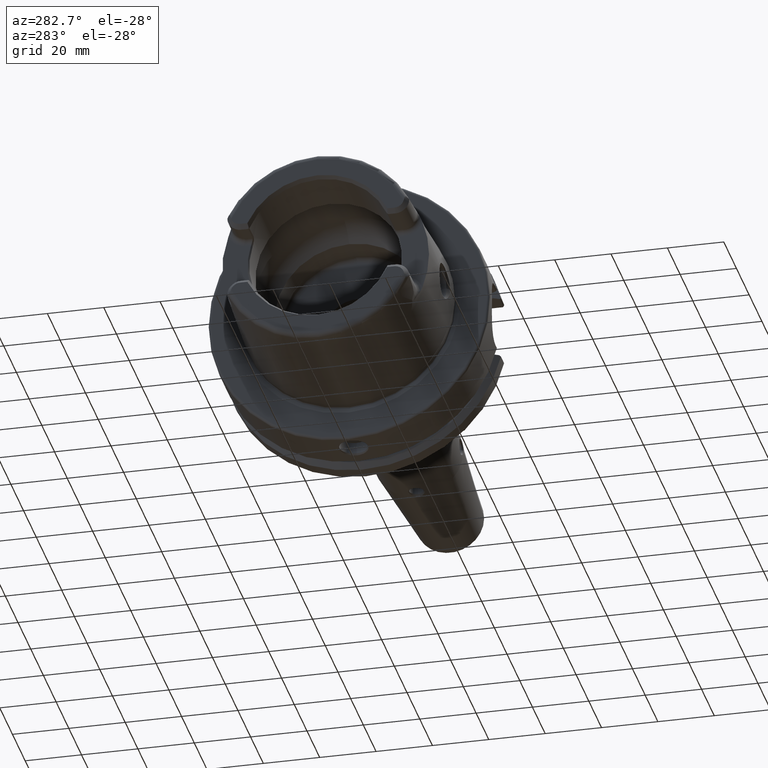
[diagram: clean part render]
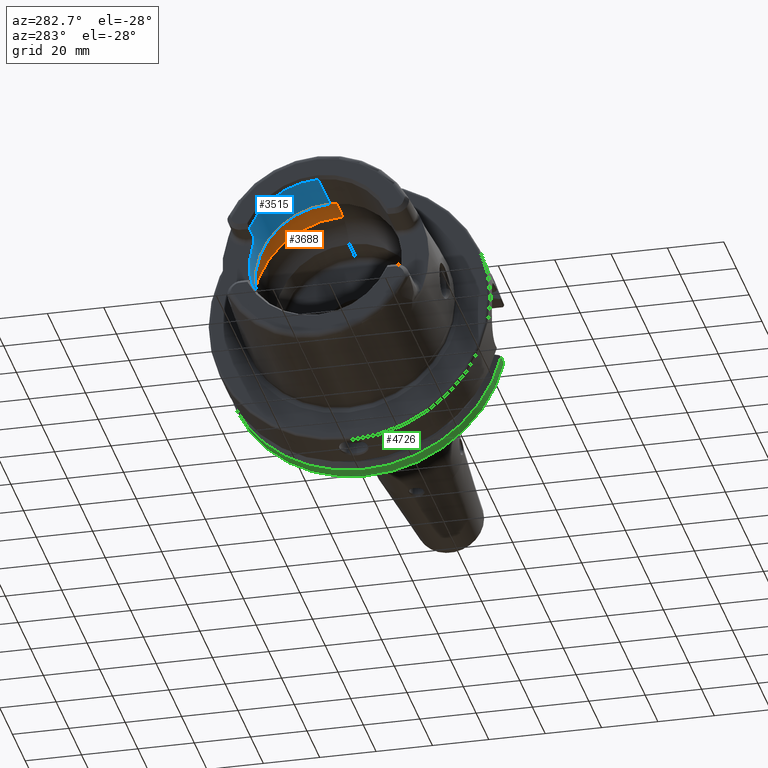
[diagram: same view with three faces highlighted in distinct colors, each labeled with its STEP entity id]
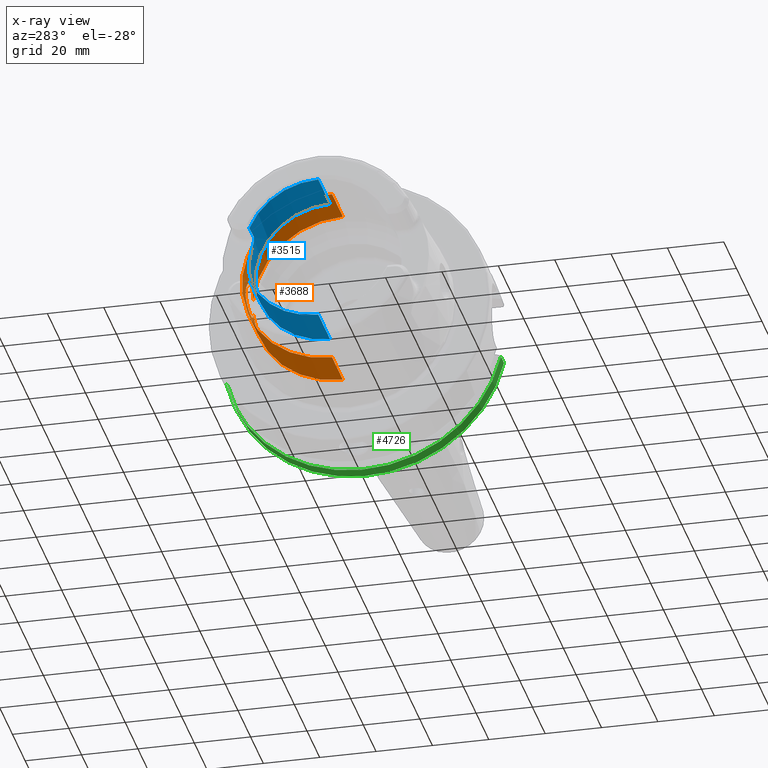
[diagram: x-ray of the same camera — body ghosted, the three highlighted faces saturated]
A machine part, auxiliary view with three faces highlighted in distinct colors.
The next image is the same camera in x-ray (body ghosted, the three faces saturated) — at least one of them is partly hidden behind the body in this view.
Their STEP definitions:

[orange] entity #3688 — the highlighted cylindrical surface (partial cylindrical patch) has radius 31.9778 mm, axis along (1, 0, 0).
#427=CARTESIAN_POINT('',(-9.7468E0,3.184612797556E1,-2.898946318923E0));
#428=CARTESIAN_POINT('',(-9.944005412070E0,3.181359782082E1,-3.256303564183E0));
#429=CARTESIAN_POINT('',(-1.040120900734E1,3.174159300596E1,-3.916297432444E0));
#430=CARTESIAN_POINT('',(-1.128383632194E1,3.162406528815E1,-4.763660379291E0));
#431=CARTESIAN_POINT('',(-1.232230375292E1,3.151751839140E1,-5.415146251802E0));
#432=CARTESIAN_POINT('',(-1.346407685513E1,3.143989965097E1,-5.843179728264E0));
#433=CARTESIAN_POINT('',(-1.468413550622E1,3.140346134515E1,-6.033257760163E0));
#434=CARTESIAN_POINT('',(-1.590286337370E1,3.141500045215E1,-5.973799251079E0));
#435=CARTESIAN_POINT('',(-1.709958222396E1,3.147295008569E1,-5.664973385295E0));
#436=CARTESIAN_POINT('',(-1.819223644760E1,3.156605857287E1,-5.128923203682E0));
#437=CARTESIAN_POINT('',(-1.916478424237E1,3.168070870612E1,-4.376379215682E0));
#438=CARTESIAN_POINT('',(-1.995642944012E1,3.179608319799E1,-3.453352431193E0));
#439=CARTESIAN_POINT('',(-2.055185605700E1,3.189559952721E1,-2.383229318045E0));
#440=CARTESIAN_POINT('',(-2.091773124914E1,3.196221615525E1,-1.212629527282E0));
#441=CARTESIAN_POINT('',(-2.1E1,3.1977801E1,-4.101582191210E-1));
#442=CARTESIAN_POINT('',(-2.1E1,3.1977801E1,0.E0));
#444=CARTESIAN_POINT('',(-9.7468E0,0.E0,0.E0));
#445=DIRECTION('',(1.E0,0.E0,0.E0));
#446=DIRECTION('',(0.E0,0.E0,-1.E0));
#447=AXIS2_PLACEMENT_3D('',#444,#445,#446);
#449=CARTESIAN_POINT('',(-9.7468E0,0.E0,0.E0));
#450=DIRECTION('',(1.E0,0.E0,0.E0));
#451=DIRECTION('',(0.E0,9.958823615031E-1,9.065496151294E-2));
#452=AXIS2_PLACEMENT_3D('',#449,#450,#451);
#454=CARTESIAN_POINT('',(-2.1E1,3.1977801E1,0.E0));
#455=CARTESIAN_POINT('',(-2.1E1,3.1977801E1,4.106997477683E-1));
#456=CARTESIAN_POINT('',(-2.091749471661E1,3.196217129480E1,1.214029966031E0));
#457=CARTESIAN_POINT('',(-2.055116984056E1,3.189547806763E1,2.384883505607E0));
#458=CARTESIAN_POINT('',(-1.995512820959E1,3.179587350407E1,3.455309060389E0));
#459=CARTESIAN_POINT('',(-1.916278264299E1,3.168044678313E1,4.378227659287E0));
#460=CARTESIAN_POINT('',(-1.819087647608E1,3.156592403505E1,5.129712845397E0));
#461=CARTESIAN_POINT('',(-1.709844581408E1,3.147288841800E1,5.665307686584E0));
#462=CARTESIAN_POINT('',(-1.590338113122E1,3.141502534529E1,5.973665622476E0));
#463=CARTESIAN_POINT('',(-1.468440379305E1,3.140345786656E1,6.033275618571E0));
#464=CARTESIAN_POINT('',(-1.346474793553E1,3.143986592390E1,5.843361181337E0));
#465=CARTESIAN_POINT('',(-1.232220739456E1,3.151751847994E1,5.415151951562E0));
#466=CARTESIAN_POINT('',(-1.128353552125E1,3.162409994003E1,4.763448630545E0));
#467=CARTESIAN_POINT('',(-1.040077785180E1,3.174165626215E1,3.915788684093E0));
#468=CARTESIAN_POINT('',(-9.943868956182E0,3.181362033E1,3.256056291556E0));
#469=CARTESIAN_POINT('',(-9.7468E0,3.184612797556E1,2.898946318923E0));
#524=DIRECTION('',(-1.E0,0.E0,0.E0));
#525=VECTOR('',#524,1.709396579106E1);
#526=CARTESIAN_POINT('',(-9.7468E0,0.E0,3.1977801E1));
#527=LINE('',#526,#525);
#528=DIRECTION('',(-1.E0,0.E0,0.E0));
#529=VECTOR('',#528,1.709396579106E1);
#530=CARTESIAN_POINT('',(-9.7468E0,0.E0,-3.1977801E1));
#531=LINE('',#530,#529);
#550=CARTESIAN_POINT('',(-2.684076579106E1,0.E0,0.E0));
#551=DIRECTION('',(1.E0,0.E0,0.E0));
#552=DIRECTION('',(0.E0,0.E0,-1.E0));
#553=AXIS2_PLACEMENT_3D('',#550,#551,#552);
#2805=CARTESIAN_POINT('',(-2.684076579106E1,0.E0,-3.1977801E1));
#2806=CARTESIAN_POINT('',(-2.684076579106E1,0.E0,3.1977801E1));
#2807=VERTEX_POINT('',#2805);
#2808=VERTEX_POINT('',#2806);
#2817=CARTESIAN_POINT('',(-9.7468E0,0.E0,-3.1977801E1));
#2818=VERTEX_POINT('',#2817);
#2819=CARTESIAN_POINT('',(-9.7468E0,0.E0,3.1977801E1));
#2820=VERTEX_POINT('',#2819);
#3098=VERTEX_POINT('',#427);
#3099=VERTEX_POINT('',#442);
#3100=VERTEX_POINT('',#469);
#3669=CARTESIAN_POINT('',(0.E0,0.E0,0.E0));
#3670=DIRECTION('',(1.E0,0.E0,0.E0));
#3671=DIRECTION('',(0.E0,0.E0,1.E0));
#3672=AXIS2_PLACEMENT_3D('',#3669,#3670,#3671);
#3673=CYLINDRICAL_SURFACE('',#3672,3.1977801E1);
#3674=ORIENTED_EDGE('',*,*,#3588,.F.);
#3676=ORIENTED_EDGE('',*,*,#3675,.F.);
#3678=ORIENTED_EDGE('',*,*,#3677,.T.);
#3680=ORIENTED_EDGE('',*,*,#3679,.T.);
#3682=ORIENTED_EDGE('',*,*,#3681,.F.);
#3684=ORIENTED_EDGE('',*,*,#3683,.F.);
#3685=ORIENTED_EDGE('',*,*,#3646,.F.);
#3686=EDGE_LOOP('',(#3674,#3676,#3678,#3680,#3682,#3684,#3685));
#3687=FACE_OUTER_BOUND('',#3686,.F.);
#3688=ADVANCED_FACE('',(#3687),#3673,.F.);
#443=B_SPLINE_CURVE_WITH_KNOTS('',3,(#427,#428,#429,#430,#431,#432,#433,#434,
#435,#436,#437,#438,#439,#440,#441,#442),.UNSPECIFIED.,.F.,.F.,(4,1,1,1,1,1,1,1,
1,1,1,1,1,4),(0.E0,7.692307692308E-2,1.538461538462E-1,2.307692307692E-1,
3.076923076923E-1,3.846153846154E-1,4.615384615385E-1,5.384615384615E-1,
6.153846153846E-1,6.923076923077E-1,7.692307692308E-1,8.461538461538E-1,
9.230769230769E-1,1.E0),.UNSPECIFIED.);
#448=CIRCLE('',#447,3.1977801E1);
#453=CIRCLE('',#452,3.1977801E1);
#470=B_SPLINE_CURVE_WITH_KNOTS('',3,(#454,#455,#456,#457,#458,#459,#460,#461,
#462,#463,#464,#465,#466,#467,#468,#469),.UNSPECIFIED.,.F.,.F.,(4,1,1,1,1,1,1,1,
1,1,1,1,1,4),(0.E0,7.692307692308E-2,1.538461538462E-1,2.307692307692E-1,
3.076923076923E-1,3.846153846154E-1,4.615384615385E-1,5.384615384615E-1,
6.153846153846E-1,6.923076923077E-1,7.692307692308E-1,8.461538461538E-1,
9.230769230769E-1,1.E0),.UNSPECIFIED.);
#554=CIRCLE('',#553,3.1977801E1);
#3588=EDGE_CURVE('',#3098,#3099,#443,.T.);
#3646=EDGE_CURVE('',#3099,#3100,#470,.T.);
#3675=EDGE_CURVE('',#2818,#3098,#448,.T.);
#3677=EDGE_CURVE('',#2818,#2807,#531,.T.);
#3679=EDGE_CURVE('',#2807,#2808,#554,.T.);
#3681=EDGE_CURVE('',#2820,#2808,#527,.T.);
#3683=EDGE_CURVE('',#3100,#2820,#453,.T.);

[blue] entity #3515 — the highlighted cylindrical surface (partial cylindrical patch) has radius 26.5 mm, axis along (1, 0, 0).
#237=CARTESIAN_POINT('',(-4.85E1,0.E0,0.E0));
#238=DIRECTION('',(1.E0,0.E0,0.E0));
#239=DIRECTION('',(0.E0,0.E0,-1.E0));
#240=AXIS2_PLACEMENT_3D('',#237,#238,#239);
#242=DIRECTION('',(-1.E0,-2.003659559567E-10,-3.466355579106E-10));
#243=VECTOR('',#242,6.499999678846E0);
#244=CARTESIAN_POINT('',(-4.200000032114E1,2.440989828297E1,-1.031537036812E1));
#245=LINE('',#244,#243);
#246=CARTESIAN_POINT('',(-3.949999999140E1,2.530699866065E1,-7.861667688007E0));
#247=CARTESIAN_POINT('',(-3.949795731454E1,2.523750189404E1,-8.085380378471E0));
#248=CARTESIAN_POINT('',(-3.956038447328E1,2.509761390786E1,-8.515347360772E0));
#249=CARTESIAN_POINT('',(-3.982663656548E1,2.487835176005E1,-9.134757987534E0));
#250=CARTESIAN_POINT('',(-4.024625699068E1,2.468206325073E1,-9.650053877008E0));
#251=CARTESIAN_POINT('',(-4.077947187094E1,2.452693438204E1,-1.003573344464E1));
#252=CARTESIAN_POINT('',(-4.138865352483E1,2.443047707860E1,-1.026689735567E1));
#253=CARTESIAN_POINT('',(-4.179354293840E1,2.440937373222E1,-1.031661164499E1));
#254=CARTESIAN_POINT('',(-4.200000032114E1,2.440989828297E1,-1.031537036812E1));
#256=CARTESIAN_POINT('',(-3.95E1,0.E0,0.E0));
#257=DIRECTION('',(-1.E0,0.E0,0.E0));
#258=DIRECTION('',(0.E0,9.549810934720E-1,2.966666666667E-1));
#259=AXIS2_PLACEMENT_3D('',#256,#257,#258);
#261=CARTESIAN_POINT('',(-4.200000001470E1,2.440989828171E1,1.031537037033E1));
#262=CARTESIAN_POINT('',(-4.178761129814E1,2.440975345339E1,1.031571308654E1));
#263=CARTESIAN_POINT('',(-4.137465751293E1,2.443170503768E1,1.026399809126E1));
#264=CARTESIAN_POINT('',(-4.077213940814E1,2.452889721140E1,1.003092465579E1));
#265=CARTESIAN_POINT('',(-4.024222096528E1,2.468349085380E1,9.646427129501E0));
#266=CARTESIAN_POINT('',(-3.982179537278E1,2.488114908925E1,9.127218319802E0));
#267=CARTESIAN_POINT('',(-3.955862203616E1,2.510023912486E1,8.507517729796E0));
#268=CARTESIAN_POINT('',(-3.949790263096E1,2.523852513593E1,8.082086529237E0));
#269=CARTESIAN_POINT('',(-3.949999998537E1,2.530699843276E1,7.861668426269E0));
#271=DIRECTION('',(1.E0,5.226861690345E-12,-6.086071831223E-12));
#272=VECTOR('',#271,6.499999985293E0);
#273=CARTESIAN_POINT('',(-4.85E1,2.440989828168E1,1.031537037037E1));
#274=LINE('',#273,#272);
#275=CARTESIAN_POINT('',(-4.85E1,0.E0,0.E0));
#276=DIRECTION('',(1.E0,0.E0,0.E0));
#277=DIRECTION('',(0.E0,9.211282370446E-1,3.892592592593E-1));
#278=AXIS2_PLACEMENT_3D('',#275,#276,#277);
#280=CARTESIAN_POINT('',(-3.000337567297E1,0.E0,0.E0));
#281=DIRECTION('',(1.E0,0.E0,0.E0));
#282=DIRECTION('',(0.E0,0.E0,-1.E0));
#283=AXIS2_PLACEMENT_3D('',#280,#281,#282);
#308=DIRECTION('',(-1.E0,-5.551588003877E-9,2.922803554237E-11));
#309=VECTOR('',#308,1.849662432609E1);
#310=CARTESIAN_POINT('',(-3.000337567297E1,0.E0,-2.65E1));
#311=LINE('',#310,#309);
#317=DIRECTION('',(-1.E0,5.551587814265E-9,-2.922592273250E-11));
#318=VECTOR('',#317,1.849662432609E1);
#319=CARTESIAN_POINT('',(-3.000337567297E1,0.E0,2.65E1));
#320=LINE('',#319,#318);
#2809=CARTESIAN_POINT('',(-3.000337567297E1,0.E0,-2.65E1));
#2810=CARTESIAN_POINT('',(-3.000337567297E1,0.E0,2.65E1));
#2811=VERTEX_POINT('',#2809);
#2812=VERTEX_POINT('',#2810);
#2990=VERTEX_POINT('',#246);
#2991=VERTEX_POINT('',#254);
#2994=CARTESIAN_POINT('',(-3.95E1,2.530699897701E1,7.861666666667E0));
#2995=VERTEX_POINT('',#2994);
#2998=VERTEX_POINT('',#261);
#3010=CARTESIAN_POINT('',(-4.85E1,0.E0,-2.65E1));
#3011=CARTESIAN_POINT('',(-4.85E1,2.440989828168E1,-1.031537037037E1));
#3012=VERTEX_POINT('',#3010);
#3013=VERTEX_POINT('',#3011);
#3016=CARTESIAN_POINT('',(-4.85E1,0.E0,2.65E1));
#3018=VERTEX_POINT('',#3016);
#3020=CARTESIAN_POINT('',(-4.85E1,2.440989828168E1,1.031537037037E1));
#3021=VERTEX_POINT('',#3020);
#3489=CARTESIAN_POINT('',(0.E0,0.E0,0.E0));
#3490=DIRECTION('',(1.E0,0.E0,0.E0));
#3491=DIRECTION('',(0.E0,0.E0,1.E0));
#3492=AXIS2_PLACEMENT_3D('',#3489,#3490,#3491);
#3493=CYLINDRICAL_SURFACE('',#3492,2.65E1);
#3495=ORIENTED_EDGE('',*,*,#3494,.T.);
#3497=ORIENTED_EDGE('',*,*,#3496,.F.);
#3499=ORIENTED_EDGE('',*,*,#3498,.F.);
#3500=ORIENTED_EDGE('',*,*,#3463,.F.);
#3502=ORIENTED_EDGE('',*,*,#3501,.F.);
#3504=ORIENTED_EDGE('',*,*,#3503,.F.);
#3506=ORIENTED_EDGE('',*,*,#3505,.T.);
#3508=ORIENTED_EDGE('',*,*,#3507,.F.);
#3510=ORIENTED_EDGE('',*,*,#3509,.F.);
#3512=ORIENTED_EDGE('',*,*,#3511,.T.);
#3513=EDGE_LOOP('',(#3495,#3497,#3499,#3500,#3502,#3504,#3506,#3508,#3510,
#3512));
#3514=FACE_OUTER_BOUND('',#3513,.F.);
#3515=ADVANCED_FACE('',(#3514),#3493,.F.);
#241=CIRCLE('',#240,2.65E1);
#255=B_SPLINE_CURVE_WITH_KNOTS('',3,(#246,#247,#248,#249,#250,#251,#252,#253,
#254),.UNSPECIFIED.,.F.,.F.,(4,1,1,1,1,1,4),(0.E0,1.666666666667E-1,
3.333333333333E-1,5.E-1,6.666666666667E-1,8.333333333333E-1,1.E0),
.UNSPECIFIED.);
#260=CIRCLE('',#259,2.65E1);
#270=B_SPLINE_CURVE_WITH_KNOTS('',3,(#261,#262,#263,#264,#265,#266,#267,#268,
#269),.UNSPECIFIED.,.F.,.F.,(4,1,1,1,1,1,4),(0.E0,1.666666666667E-1,
3.333333333333E-1,5.E-1,6.666666666667E-1,8.333333333333E-1,1.E0),
.UNSPECIFIED.);
#279=CIRCLE('',#278,2.65E1);
#284=CIRCLE('',#283,2.65E1);
#3463=EDGE_CURVE('',#2995,#2990,#260,.T.);
#3494=EDGE_CURVE('',#3012,#3013,#241,.T.);
#3496=EDGE_CURVE('',#2991,#3013,#245,.T.);
#3498=EDGE_CURVE('',#2990,#2991,#255,.T.);
#3501=EDGE_CURVE('',#2998,#2995,#270,.T.);
#3503=EDGE_CURVE('',#3021,#2998,#274,.T.);
#3505=EDGE_CURVE('',#3021,#3018,#279,.T.);
#3507=EDGE_CURVE('',#2812,#3018,#320,.T.);
#3509=EDGE_CURVE('',#2811,#2812,#284,.T.);
#3511=EDGE_CURVE('',#2811,#3012,#311,.T.);

[green] entity #4726 — the highlighted cylindrical surface (partial cylindrical patch) has radius 50 mm, axis along (1, 0, 0).
#1372=DIRECTION('',(1.E0,0.E0,0.E0));
#1373=VECTOR('',#1372,4.752404735808E0);
#1374=CARTESIAN_POINT('',(2.324759526419E1,4.890531149727E1,-1.040531149727E1));
#1375=LINE('',#1374,#1373);
#1376=DIRECTION('',(1.E0,0.E0,0.E0));
#1377=VECTOR('',#1376,4.752404735808E0);
#1378=CARTESIAN_POINT('',(2.324759526419E1,-4.866725793949E1,
-1.146725793949E1));
#1379=LINE('',#1378,#1377);
#1480=CARTESIAN_POINT('',(2.8E1,0.E0,0.E0));
#1481=DIRECTION('',(-1.E0,0.E0,0.E0));
#1482=DIRECTION('',(0.E0,9.781062299454E-1,-2.081062299454E-1));
#1483=AXIS2_PLACEMENT_3D('',#1480,#1481,#1482);
#1490=CARTESIAN_POINT('',(2.8E1,-4.866725793949E1,-1.146725793949E1));
#1626=CARTESIAN_POINT('',(2.8E1,4.890531149727E1,-1.040531149727E1));
#1741=CARTESIAN_POINT('',(2.324759526419E1,-4.866725793949E1,
-1.146725793949E1));
#1743=CARTESIAN_POINT('',(2.324759526419E1,0.E0,0.E0));
#1744=DIRECTION('',(1.E0,0.E0,0.E0));
#1745=DIRECTION('',(0.E0,-9.733451587899E-1,-2.293451587899E-1));
#1746=AXIS2_PLACEMENT_3D('',#1743,#1744,#1745);
#1748=CARTESIAN_POINT('',(2.324759526419E1,4.890531149727E1,-1.040531149727E1));
#3131=VERTEX_POINT('',#1748);
#3148=VERTEX_POINT('',#1741);
#3166=VERTEX_POINT('',#1490);
#3171=VERTEX_POINT('',#1626);
#4711=CARTESIAN_POINT('',(0.E0,0.E0,0.E0));
#4712=DIRECTION('',(1.E0,0.E0,0.E0));
#4713=DIRECTION('',(0.E0,0.E0,1.E0));
#4714=AXIS2_PLACEMENT_3D('',#4711,#4712,#4713);
#4715=CYLINDRICAL_SURFACE('',#4714,5.E1);
#4717=ORIENTED_EDGE('',*,*,#4716,.F.);
#4719=ORIENTED_EDGE('',*,*,#4718,.F.);
#4721=ORIENTED_EDGE('',*,*,#4720,.F.);
#4723=ORIENTED_EDGE('',*,*,#4722,.T.);
#4724=EDGE_LOOP('',(#4717,#4719,#4721,#4723));
#4725=FACE_OUTER_BOUND('',#4724,.F.);
#4726=ADVANCED_FACE('',(#4725),#4715,.T.);
#1484=CIRCLE('',#1483,5.E1);
#1747=CIRCLE('',#1746,5.E1);
#4716=EDGE_CURVE('',#3171,#3166,#1484,.T.);
#4718=EDGE_CURVE('',#3131,#3171,#1375,.T.);
#4720=EDGE_CURVE('',#3148,#3131,#1747,.T.);
#4722=EDGE_CURVE('',#3148,#3166,#1379,.T.);